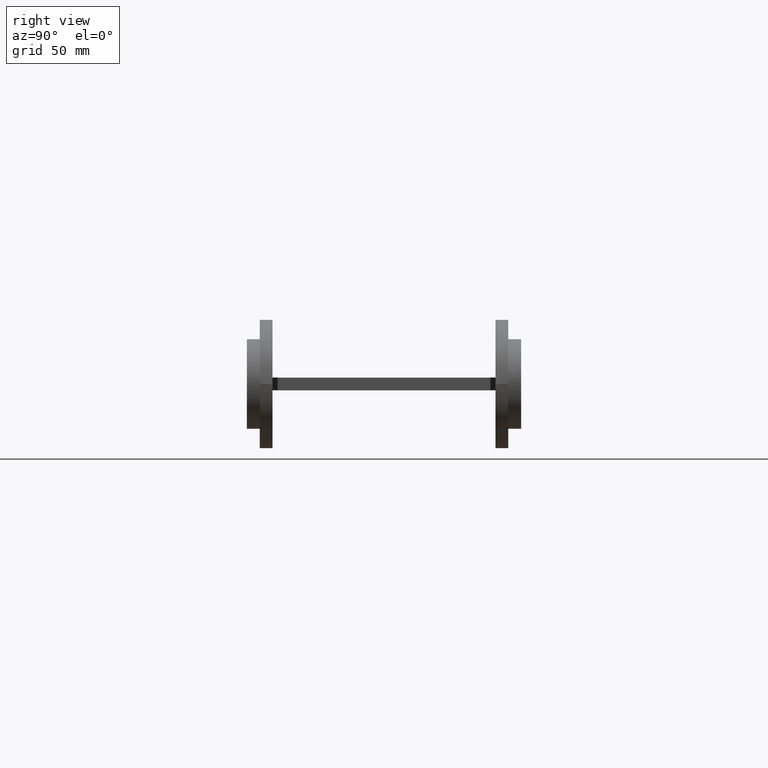
[diagram: clean part render]
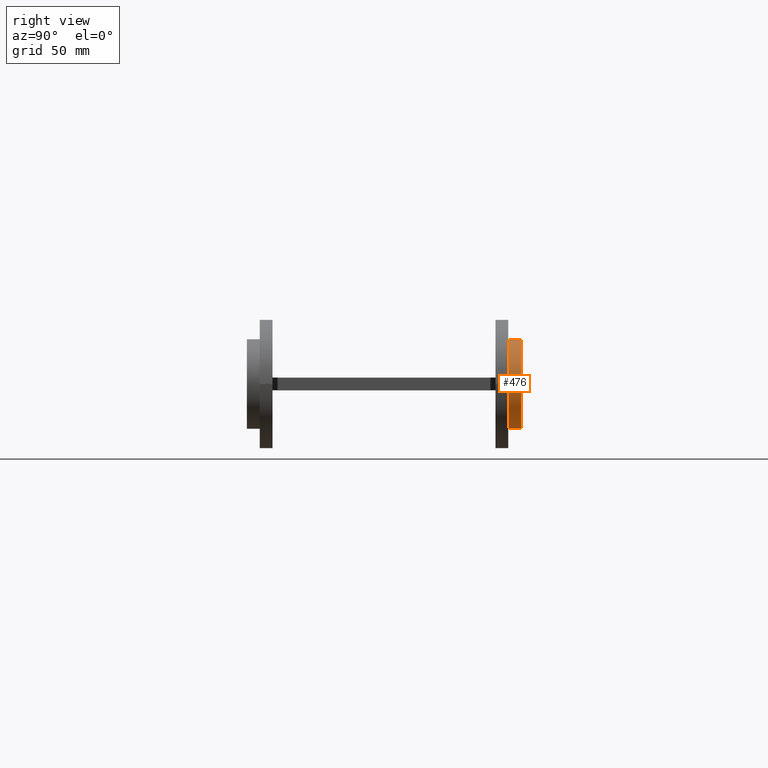
[diagram: same view with one face highlighted and labeled with its STEP entity id]
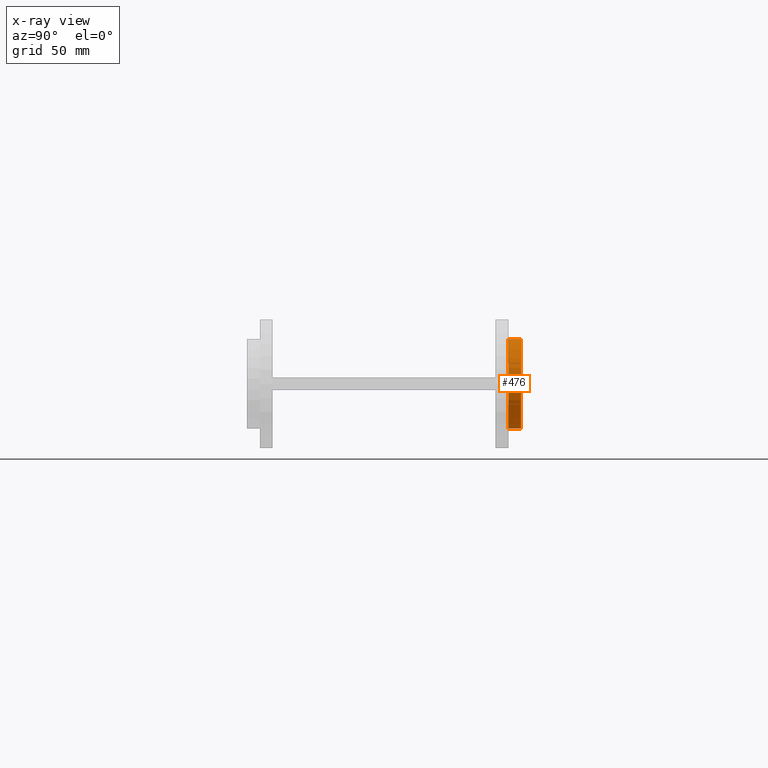
[diagram: x-ray of the same camera — body ghosted, the highlighted face saturated]
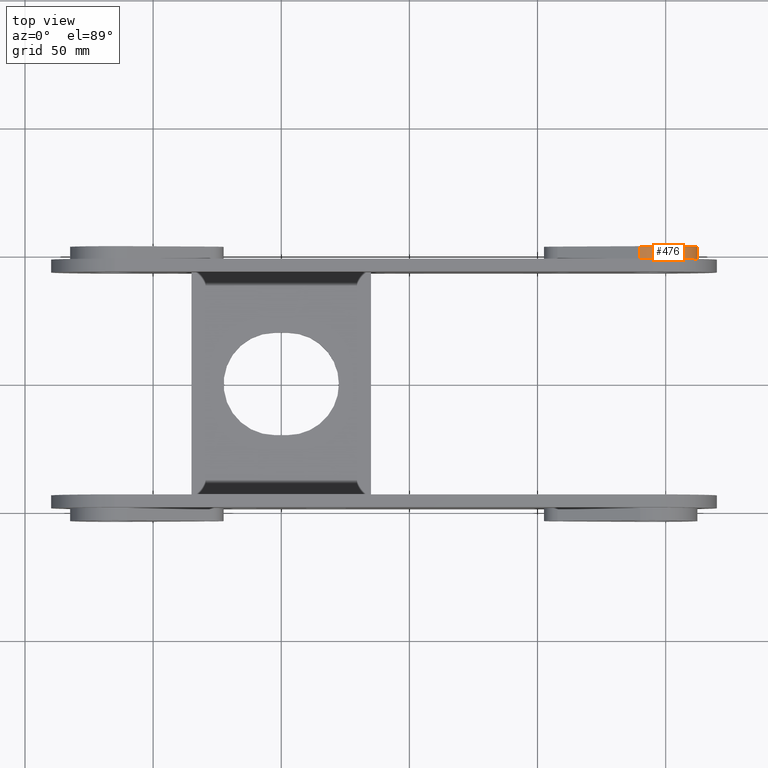
[diagram: same view with one face highlighted and labeled with its STEP entity id]
A machine part, right view. The second image highlights one B-rep face of the part: STEP entity #476.
The next image is the same camera in x-ray: the body ghosted, the highlighted face saturated — about 0% of this face is hidden behind the body in this view.
A second angle (top view) of the same face is appended — the face is thin or edge-on in the first view.
In plain terms, the highlighted cylindrical surface (partial cylindrical patch) has radius 17.5 mm, axis along (-0, 1, -0).
Its self-contained STEP definition (entity closure, byte-faithful):
#32 = VECTOR ( 'NONE', #2027, 1000.000000000000000 ) ;
#40 = ORIENTED_EDGE ( 'NONE', *, *, #2723, .F. ) ;
#52 = VERTEX_POINT ( 'NONE', #2033 ) ;
#151 = CARTESIAN_POINT ( 'NONE',  ( 0.000000000000000000, -3.469446951953614189E-15, -4.999999999999997335 ) ) ;
#318 = LINE ( 'NONE', #1171, #32 ) ;
#332 = DIRECTION ( 'NONE',  ( 3.451266460341922270E-31, 2.588449845256441483E-31, 1.000000000000000000 ) ) ;
#436 = ORIENTED_EDGE ( 'NONE', *, *, #1799, .T. ) ;
#476 = ADVANCED_FACE ( 'NONE', ( #1434 ), #1833, .T. ) ;
#512 = CARTESIAN_POINT ( 'NONE',  ( 5.000000000000101252, 16.77050983124843953, -5.000000000000004441 ) ) ;
#536 = AXIS2_PLACEMENT_3D ( 'NONE', #2255, #332, #1830 ) ;
#556 = LINE ( 'NONE', #2673, #2618 ) ;
#567 = DIRECTION ( 'NONE',  ( 3.451266460341922270E-31, 2.588449845256441483E-31, 1.000000000000000000 ) ) ;
#617 = ORIENTED_EDGE ( 'NONE', *, *, #1824, .F. ) ;
#657 = CARTESIAN_POINT ( 'NONE',  ( 5.000000000000101252, 16.77050983124844308, 2.081668171172168513E-14 ) ) ;
#748 = DIRECTION ( 'NONE',  ( 1.000000000000000000, -8.881784197001215839E-16, 0.000000000000000000 ) ) ;
#768 = DIRECTION ( 'NONE',  ( 3.451266460341922270E-31, 2.588449845256441483E-31, 1.000000000000000000 ) ) ;
#813 = ORIENTED_EDGE ( 'NONE', *, *, #1124, .T. ) ;
#873 = DIRECTION ( 'NONE',  ( 1.000000000000000000, -8.881784197001215839E-16, 0.000000000000000000 ) ) ;
#874 = AXIS2_PLACEMENT_3D ( 'NONE', #151, #567, #748 ) ;
#1124 = EDGE_CURVE ( 'NONE', #1356, #2718, #1143, .T. ) ;
#1143 = CIRCLE ( 'NONE', #1813, 17.50000000000007105 ) ;
#1171 = CARTESIAN_POINT ( 'NONE',  ( 5.000000000000129674, -16.77050983124860650, -4.999999999999962697 ) ) ;
#1209 = VERTEX_POINT ( 'NONE', #657 ) ;
#1296 = DIRECTION ( 'NONE',  ( 3.451266460341922270E-31, 2.588449845256441483E-31, 1.000000000000000000 ) ) ;
#1356 = VERTEX_POINT ( 'NONE', #512 ) ;
#1434 = FACE_OUTER_BOUND ( 'NONE', #1700, .T. ) ;
#1700 = EDGE_LOOP ( 'NONE', ( #617, #40, #813, #436 ) ) ;
#1713 = CARTESIAN_POINT ( 'NONE',  ( 0.000000000000000000, -3.469446951953614189E-15, -4.999999999999997335 ) ) ;
#1799 = EDGE_CURVE ( 'NONE', #2718, #52, #318, .T. ) ;
#1813 = AXIS2_PLACEMENT_3D ( 'NONE', #1713, #1296, #873 ) ;
#1824 = EDGE_CURVE ( 'NONE', #1209, #52, #1878, .T. ) ;
#1830 = DIRECTION ( 'NONE',  ( 1.000000000000000000, -8.881784197001215839E-16, 3.081487911019565104E-31 ) ) ;
#1833 = CYLINDRICAL_SURFACE ( 'NONE', #874, 17.50000000000007105 ) ;
#1878 = CIRCLE ( 'NONE', #536, 17.50000000000007105 ) ;
#2027 = DIRECTION ( 'NONE',  ( 3.451266460341922270E-31, 2.588449845256441483E-31, 1.000000000000000000 ) ) ;
#2033 = CARTESIAN_POINT ( 'NONE',  ( 5.000000000000004441, -16.77050983124852124, 3.469446951953614189E-14 ) ) ;
#2255 = CARTESIAN_POINT ( 'NONE',  ( 0.000000000000000000, 0.000000000000000000, 0.000000000000000000 ) ) ;
#2425 = CARTESIAN_POINT ( 'NONE',  ( 5.000000000000129674, -16.77050983124860650, -4.999999999999962697 ) ) ;
#2618 = VECTOR ( 'NONE', #768, 1000.000000000000000 ) ;
#2673 = CARTESIAN_POINT ( 'NONE',  ( 5.000000000000101252, 16.77050983124843953, -5.000000000000004441 ) ) ;
#2718 = VERTEX_POINT ( 'NONE', #2425 ) ;
#2723 = EDGE_CURVE ( 'NONE', #1356, #1209, #556, .T. ) ;